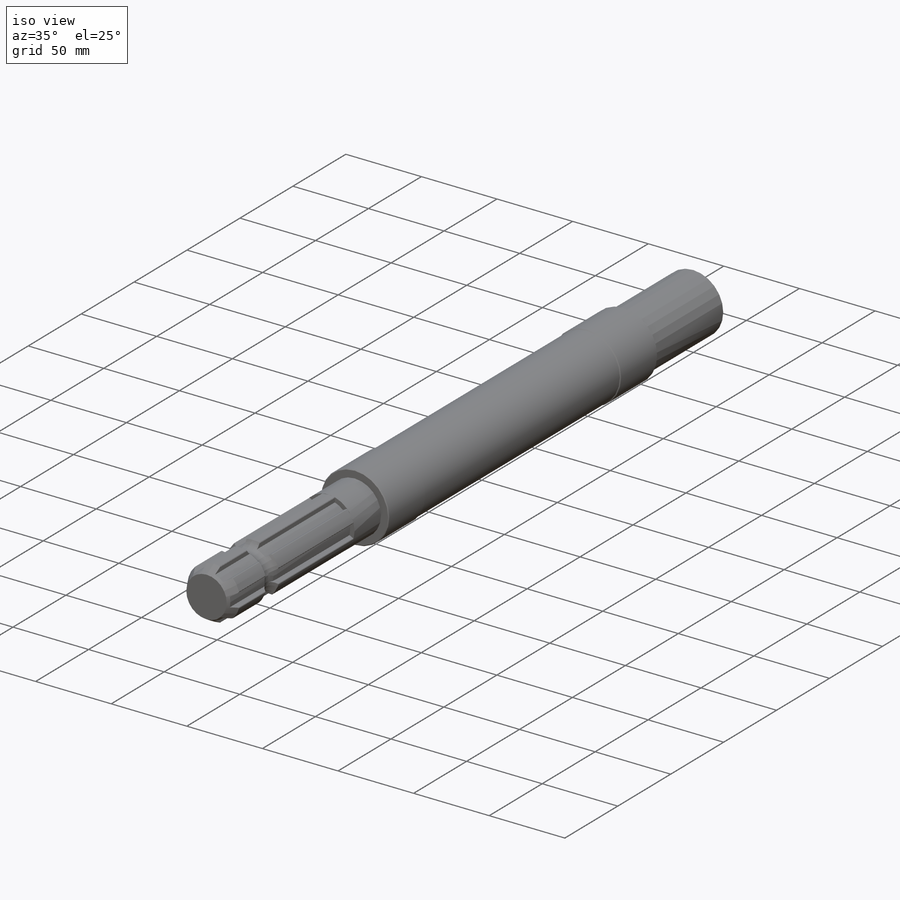
[diagram: iso view]
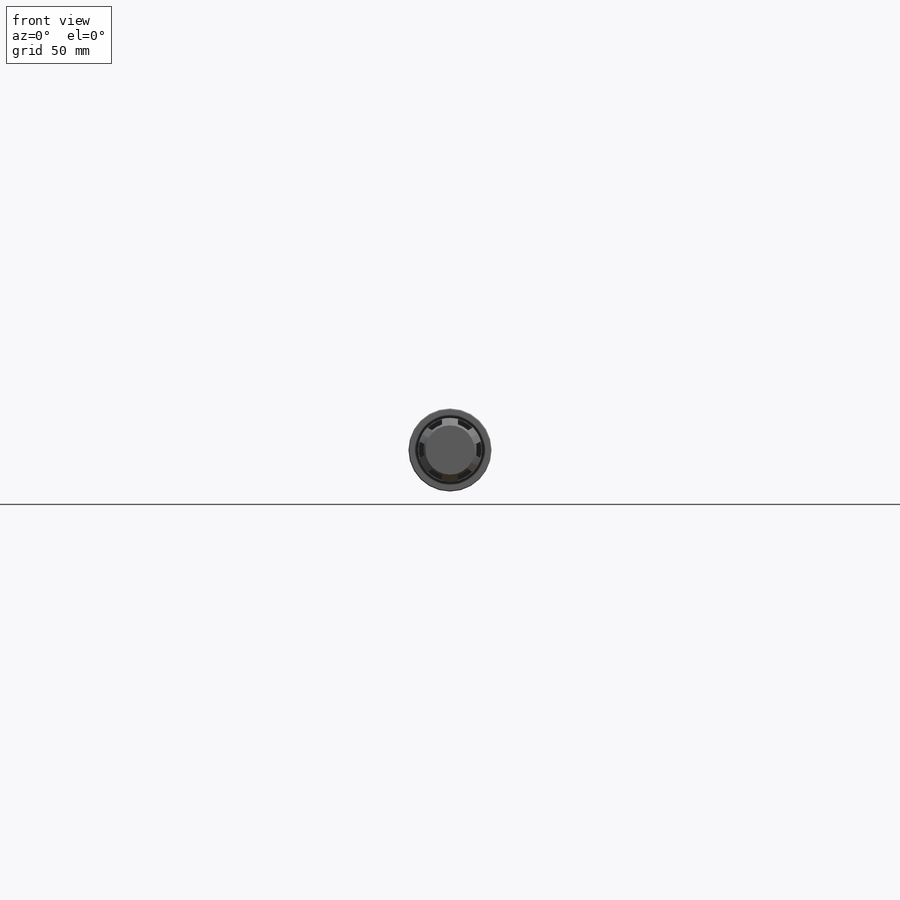
[diagram: front view]
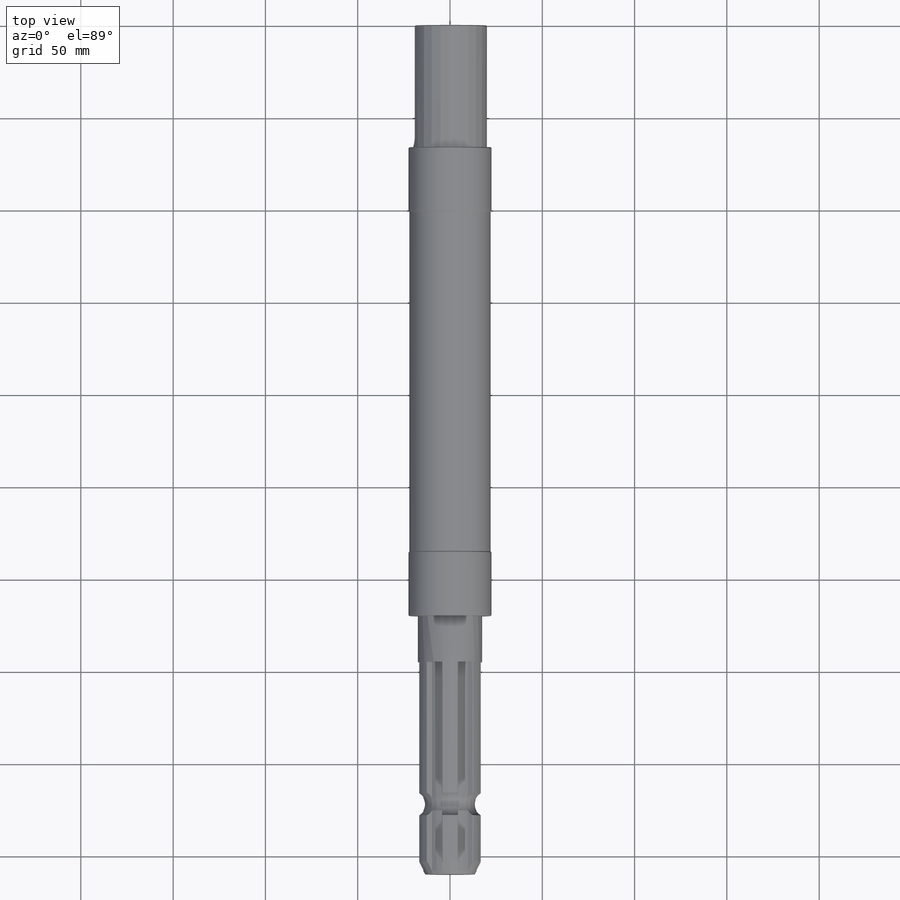
[diagram: top view]
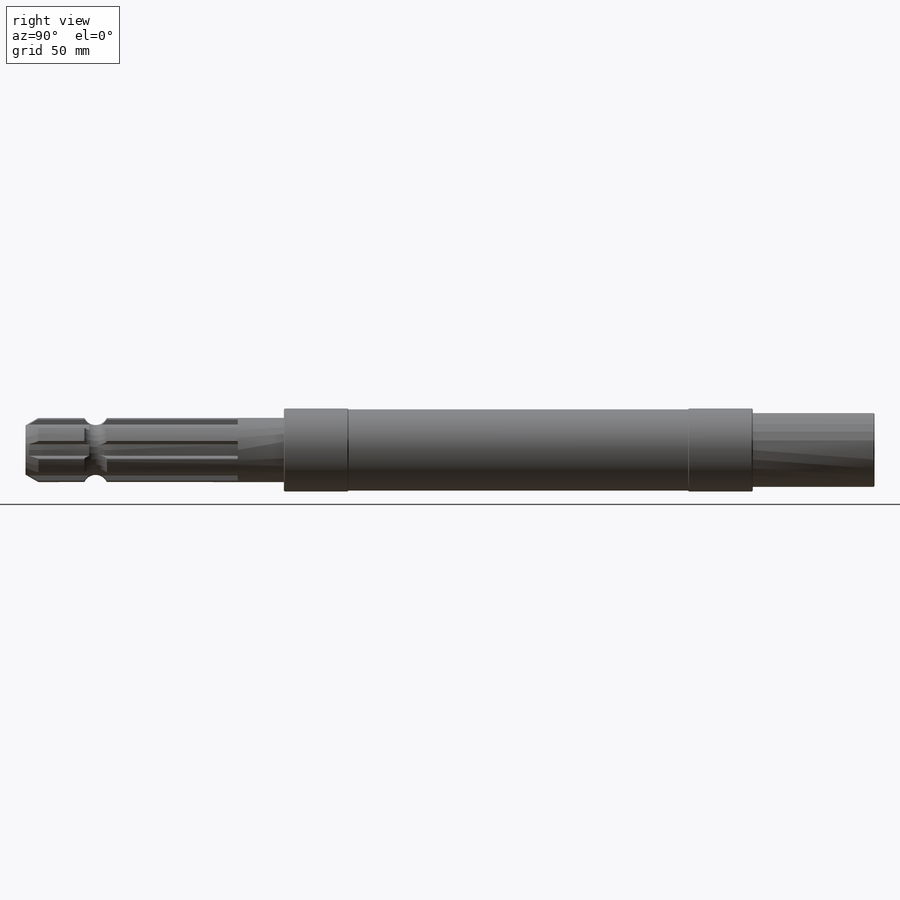
[diagram: right view]
SOLIDWORKS PART (.sldprt)
format: sldprt  version: not decoded by parser v0  size: 462,336 bytes
history: native  units: mm
features: sketch x11, extrude x6, plane x3, chamfer x3, cut_extrude x2, material x1, hole x1, thread x1, cut_revolve x1, fillet x1 (+9 scaffold rows collapsed)
feature tree (39):
  scaffold x9  (default folders/planes/origin — collapsed)
  material  "Materiál <není určen>"
  plane  "Přední rovina"
  plane  "Horní rovina"
  plane  "Pravá rovina"
  sketch  "Skica1"  dims[D1=40.0mm]
  extrude  "Přidat vysunutím1"  Depth=66mm
  sketch  "Skica2"  dims[D1=45.0mm]
  extrude  "Přidat vysunutím2"  Depth=35mm
  sketch  "Skica3"  dims[D1=44.0mm]
  extrude  "Přidat vysunutím3"  Depth=184mm
  sketch  "Skica4"  dims[D1=45.0mm]
  extrude  "Přidat vysunutím4"  Depth=35mm
  sketch  "Skica5"  dims[D1=34.79mm]
  extrude  "Přidat vysunutím5"  Depth=50mm
  sketch  "Skica6"  dims[D1=34.79mm]
  extrude  "Přidat vysunutím6"  Depth=90mm
  chamfer  "Zkosení3"  Distance=7mm Angle=30deg
  sketch  "Skica9"  dims[c1.D1=28.91mm c1.D2=35.0mm c1.D4=0.25mm c1.D3=8.69mm c2.D4=~2.590764mm c2.D2=6.0]
  cut_extrude  "Odebrat vysunutím16"  Depth=115mm
  hole  "M10 závit1"  Diameter=8.5mm Depth=30mm
  sketch  "Skica11"
  sketch  "Skica10"  dims[hole-wizard template sketch: 34 standard entries collapsed; hole parameters kept: c6.Průměr závitníku=8.5mm c6.Hloubka závitníku=30.0mm c7.D3=~14.816244mm]
  thread  "Závit díry1"  Diameter=30mm  [1 undecoded]
  sketch  "Skica12"  dims[c1.D1=12.0mm c1.D2=6.0mm c1.D3=12.0mm c2.D1=6.0mm]
  cut_extrude  "Odebrat vysunutím17"  Depth=10mm
  chamfer  "Zkosení4"  Distance=0.5mm
  sketch  "Skica13"  dims[c1.D1=6.7mm c1.D2=3.35mm c2.D1=6.7mm c2.D2=6.7mm c3.D1=6.7mm c3.D2=38.0mm c4.D1=6.7mm c4.D2=2.695mm c4.D3=~12.998653mm c5.D3=38.0mm c5.D2=2.94mm]
  cut_revolve  "Odebrat rotací4"  [1 undecoded]
  chamfer  "Zkosení5"  Distance=0.25mm
  fillet  "Zaoblit3"  Radius=30mm
decode coverage: 24 of 26 modeling features carry decoded parameters
note: ~ marks probable driven/reference dimensions
note: 2 parameter values undecoded
note: suppression state not decoded; provenance and decode notes live in map.json
